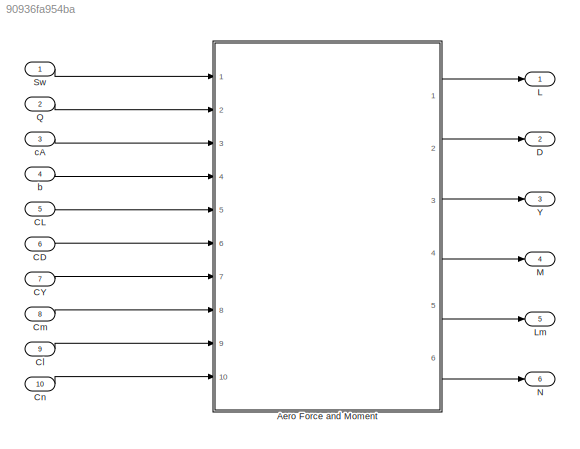
MODEL slx_90936fa954ba
KIND model
CONFIG AbsTol = auto
CONFIG EnableMultiTasking = off
CONFIG FixedStep = auto
CONFIG MaxStep = auto
CONFIG MinStep = auto
CONFIG RelTol = 1e-3
CONFIG SampleTimeConstraint = Unconstrained
CONFIG Solver = VariableStepAuto
CONFIG SolverName = VariableStepAuto
CONFIG StartTime = 0.0
CONFIG StopTime = 10.0
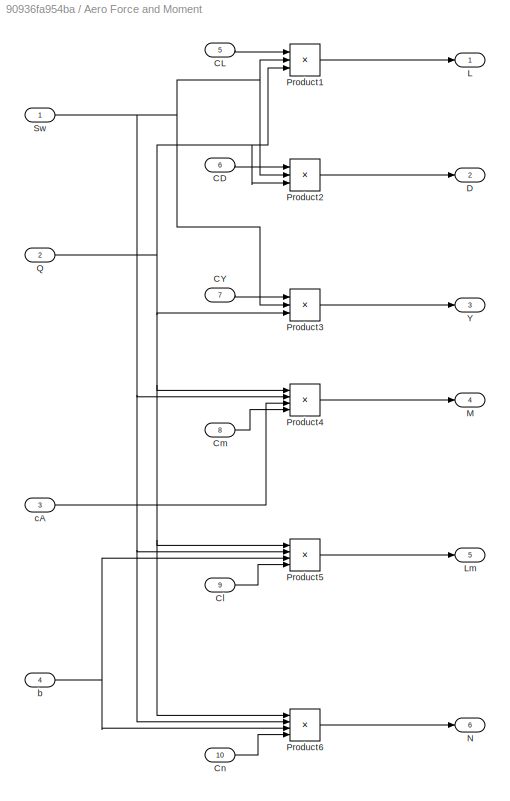
BLOCK [SubSystem] Aero Force and Moment
  Ports = [10, 6]
  RequestExecContextInheritance = off
BLOCK [Inport] Aero Force and Moment/CD
  IconDisplay = Port number
  Port = 6
BLOCK [Inport] Aero Force and Moment/CL
  IconDisplay = Port number
  Port = 5
BLOCK [Inport] Aero Force and Moment/CY
  IconDisplay = Port number
  Port = 7
BLOCK [Inport] Aero Force and Moment/Cl
  IconDisplay = Port number
  Port = 9
BLOCK [Inport] Aero Force and Moment/Cm
  IconDisplay = Port number
  Port = 8
BLOCK [Inport] Aero Force and Moment/Cn
  IconDisplay = Port number
  Port = 10
BLOCK [Outport] Aero Force and Moment/D
  IconDisplay = Port number
  Port = 2
BLOCK [Outport] Aero Force and Moment/L
  IconDisplay = Port number
BLOCK [Outport] Aero Force and Moment/Lm
  IconDisplay = Port number
  Port = 5
BLOCK [Outport] Aero Force and Moment/M
  IconDisplay = Port number
  Port = 4
BLOCK [Outport] Aero Force and Moment/N
  IconDisplay = Port number
  Port = 6
BLOCK [Product] Aero Force and Moment/Product1
  InputSameDT = off
  Inputs = 3
  OutDataTypeStr = Inherit: Inherit via internal rule
  Ports = [3, 1]
  RndMeth = Floor
  SaturateOnIntegerOverflow = off
BLOCK [Product] Aero Force and Moment/Product2
  InputSameDT = off
  Inputs = 3
  OutDataTypeStr = Inherit: Inherit via internal rule
  Ports = [3, 1]
  RndMeth = Floor
  SaturateOnIntegerOverflow = off
BLOCK [Product] Aero Force and Moment/Product3
  InputSameDT = off
  Inputs = 3
  OutDataTypeStr = Inherit: Inherit via internal rule
  Ports = [3, 1]
  RndMeth = Floor
  SaturateOnIntegerOverflow = off
BLOCK [Product] Aero Force and Moment/Product4
  InputSameDT = off
  Inputs = 4
  OutDataTypeStr = Inherit: Inherit via internal rule
  Ports = [4, 1]
  RndMeth = Floor
  SaturateOnIntegerOverflow = off
BLOCK [Product] Aero Force and Moment/Product5
  InputSameDT = off
  Inputs = 4
  OutDataTypeStr = Inherit: Inherit via internal rule
  Ports = [4, 1]
  RndMeth = Floor
  SaturateOnIntegerOverflow = off
BLOCK [Product] Aero Force and Moment/Product6
  InputSameDT = off
  Inputs = 4
  OutDataTypeStr = Inherit: Inherit via internal rule
  Ports = [4, 1]
  RndMeth = Floor
  SaturateOnIntegerOverflow = off
BLOCK [Inport] Aero Force and Moment/Q
  IconDisplay = Port number
  Port = 2
BLOCK [Inport] Aero Force and Moment/Sw
  IconDisplay = Port number
BLOCK [Outport] Aero Force and Moment/Y
  IconDisplay = Port number
  Port = 3
BLOCK [Inport] Aero Force and Moment/b
  IconDisplay = Port number
  Port = 4
BLOCK [Inport] Aero Force and Moment/cA
  IconDisplay = Port number
  Port = 3
BLOCK [Inport] CD
  IconDisplay = Port number
  Port = 6
BLOCK [Inport] CL
  IconDisplay = Port number
  Port = 5
BLOCK [Inport] CY
  IconDisplay = Port number
  Port = 7
BLOCK [Inport] Cl
  IconDisplay = Port number
  Port = 9
BLOCK [Inport] Cm
  IconDisplay = Port number
  Port = 8
BLOCK [Inport] Cn
  IconDisplay = Port number
  Port = 10
BLOCK [Outport] D
  IconDisplay = Port number
  Port = 2
BLOCK [Outport] L
  IconDisplay = Port number
BLOCK [Outport] Lm
  IconDisplay = Port number
  Port = 5
BLOCK [Outport] M
  IconDisplay = Port number
  Port = 4
BLOCK [Outport] N
  IconDisplay = Port number
  Port = 6
BLOCK [Inport] Q
  IconDisplay = Port number
  Port = 2
BLOCK [Inport] Sw
  IconDisplay = Port number
BLOCK [Outport] Y
  IconDisplay = Port number
  Port = 3
BLOCK [Inport] b
  IconDisplay = Port number
  Port = 4
BLOCK [Inport] cA
  IconDisplay = Port number
  Port = 3
LINE Aero Force and Moment/CD:1 -> Aero Force and Moment/Product2:1
LINE Aero Force and Moment/CL:1 -> Aero Force and Moment/Product1:1
LINE Aero Force and Moment/CY:1 -> Aero Force and Moment/Product3:1
LINE Aero Force and Moment/Cl:1 -> Aero Force and Moment/Product5:4
LINE Aero Force and Moment/Cm:1 -> Aero Force and Moment/Product4:4
LINE Aero Force and Moment/Cn:1 -> Aero Force and Moment/Product6:4
LINE Aero Force and Moment/Product1:1 -> Aero Force and Moment/L:1
LINE Aero Force and Moment/Product2:1 -> Aero Force and Moment/D:1
LINE Aero Force and Moment/Product3:1 -> Aero Force and Moment/Y:1
LINE Aero Force and Moment/Product4:1 -> Aero Force and Moment/M:1
LINE Aero Force and Moment/Product5:1 -> Aero Force and Moment/Lm:1
LINE Aero Force and Moment/Product6:1 -> Aero Force and Moment/N:1
NET Aero Force and Moment/Q:1 -> Aero Force and Moment/Product1:3, Aero Force and Moment/Product2:3, Aero Force and Moment/Product3:3, Aero Force and Moment/Product4:1, Aero Force and Moment/Product5:1, Aero Force and Moment/Product6:1
NET Aero Force and Moment/Sw:1 -> Aero Force and Moment/Product1:2, Aero Force and Moment/Product2:2, Aero Force and Moment/Product3:2, Aero Force and Moment/Product4:2, Aero Force and Moment/Product5:2, Aero Force and Moment/Product6:2
NET Aero Force and Moment/b:1 -> Aero Force and Moment/Product5:3, Aero Force and Moment/Product6:3
LINE Aero Force and Moment/cA:1 -> Aero Force and Moment/Product4:3
LINE Aero Force and Moment:1 -> L:1
LINE Aero Force and Moment:2 -> D:1
LINE Aero Force and Moment:3 -> Y:1
LINE Aero Force and Moment:4 -> M:1
LINE Aero Force and Moment:5 -> Lm:1
LINE Aero Force and Moment:6 -> N:1
LINE CD:1 -> Aero Force and Moment:6
LINE CL:1 -> Aero Force and Moment:5
LINE CY:1 -> Aero Force and Moment:7
LINE Cl:1 -> Aero Force and Moment:9
LINE Cm:1 -> Aero Force and Moment:8
LINE Cn:1 -> Aero Force and Moment:10
LINE Q:1 -> Aero Force and Moment:2
LINE Sw:1 -> Aero Force and Moment:1
LINE b:1 -> Aero Force and Moment:4
LINE cA:1 -> Aero Force and Moment:3
note: NET lines group one-source signal fan-out (src -> all destinations, sorted); 1:1 wires keep LINE
